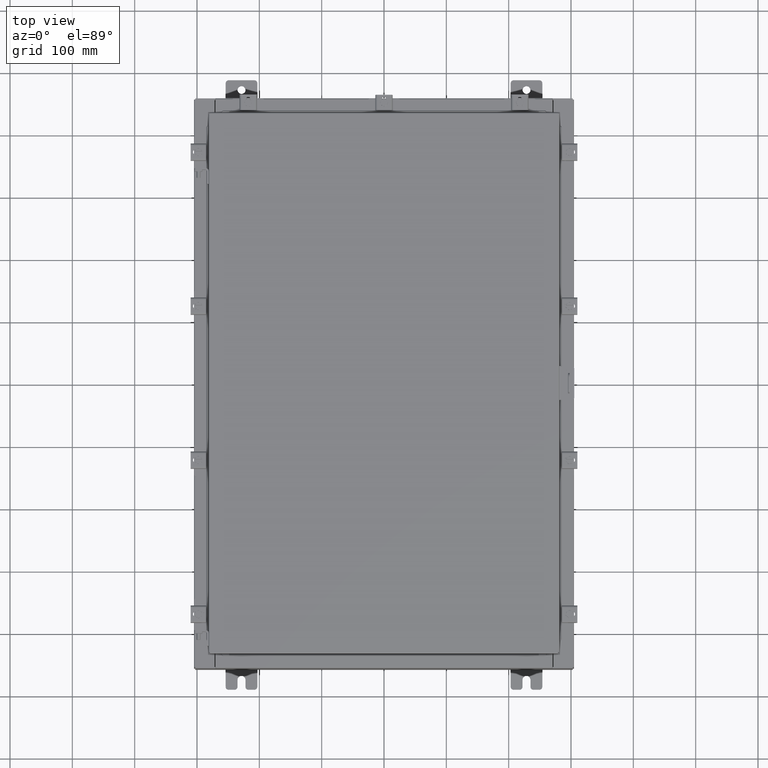
[diagram: clean part render]
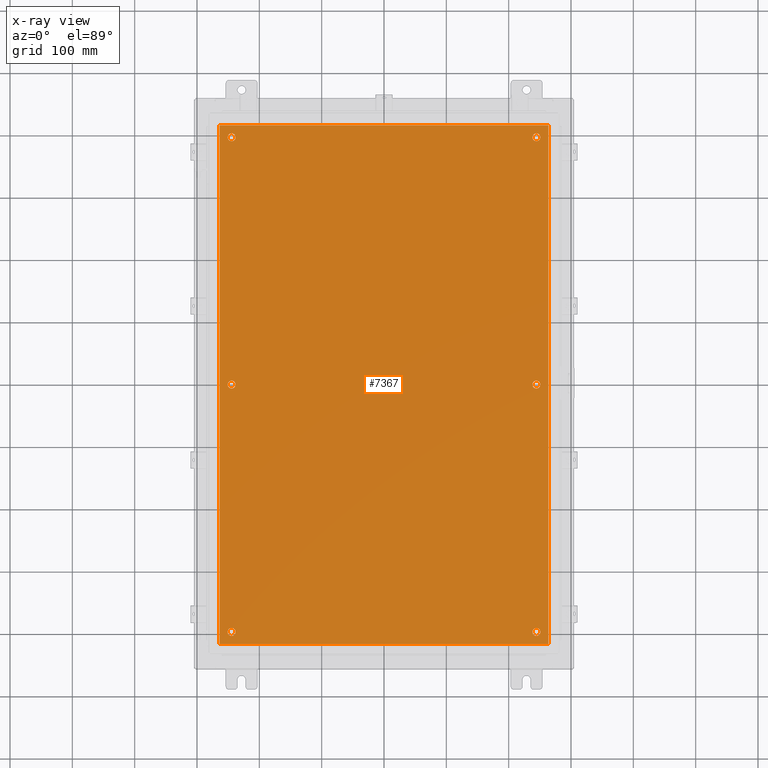
[diagram: x-ray — body ghosted, one internal face saturated and labeled with its STEP entity id]
A machine part, top view, then the same camera in x-ray: the body is ghosted and one INTERNAL B-rep face — a face not visible from any outside direction — is saturated and labeled: STEP entity #7367.
In plain terms, the highlighted planar face has unit normal (0, 0, -1).
Its self-contained STEP definition (entity closure, byte-faithful):
#87 = LINE ( 'NONE', #20182, #22850 ) ;
#233 = EDGE_CURVE ( 'NONE', #4093, #21876, #3346, .T. ) ;
#275 = DIRECTION ( 'NONE',  ( -0.0000000000000000000, -0.0000000000000000000, 1.000000000000000000 ) ) ;
#276 = FACE_BOUND ( 'NONE', #6304, .T. ) ;
#393 = CARTESIAN_POINT ( 'NONE',  ( 9.375000000000007100, 15.62500000000000200, -0.1039999999999999800 ) ) ;
#644 = CARTESIAN_POINT ( 'NONE',  ( 10.38300000000000100, 16.38300000000000300, -0.1040000000000009100 ) ) ;
#812 = FACE_BOUND ( 'NONE', #20964, .T. ) ;
#1021 = EDGE_LOOP ( 'NONE', ( #12643, #14205 ) ) ;
#1357 = EDGE_CURVE ( 'NONE', #20953, #22710, #8074, .T. ) ;
#1564 = CARTESIAN_POINT ( 'NONE',  ( -9.375000000000007100, 15.62500000000000200, -0.1039999999999999800 ) ) ;
#1627 = PLANE ( 'NONE',  #22782 ) ;
#1667 = ORIENTED_EDGE ( 'NONE', *, *, #22546, .T. ) ;
#2003 = CARTESIAN_POINT ( 'NONE',  ( -9.625000000000007100, 15.62500000000000200, -0.1039999999999999800 ) ) ;
#2043 = EDGE_CURVE ( 'NONE', #11783, #20273, #9920, .T. ) ;
#2209 = ORIENTED_EDGE ( 'NONE', *, *, #21943, .T. ) ;
#2284 = ORIENTED_EDGE ( 'NONE', *, *, #16944, .T. ) ;
#2448 = ORIENTED_EDGE ( 'NONE', *, *, #20323, .T. ) ;
#2537 = VERTEX_POINT ( 'NONE', #6077 ) ;
#3115 = CARTESIAN_POINT ( 'NONE',  ( 9.625000000000007100, 15.62500000000000200, -0.1039999999999999800 ) ) ;
#3303 = CARTESIAN_POINT ( 'NONE',  ( -9.625000000000007100, 15.62500000000000200, -0.1039999999999999800 ) ) ;
#3311 = CIRCLE ( 'NONE', #15543, 0.2499999999999998100 ) ;
#3319 = CARTESIAN_POINT ( 'NONE',  ( -10.38300000000000100, -16.38299999999999600, -0.1040000000000009100 ) ) ;
#3323 = CARTESIAN_POINT ( 'NONE',  ( 9.625000000000007100, -15.62500000000000200, -0.1039999999999999800 ) ) ;
#3346 = CIRCLE ( 'NONE', #18499, 0.2499999999999998100 ) ;
#3440 = DIRECTION ( 'NONE',  ( -1.000000000000000000, 0.0000000000000000000, -0.0000000000000000000 ) ) ;
#3814 = DIRECTION ( 'NONE',  ( -1.000000000000000000, 0.0000000000000000000, 0.0000000000000000000 ) ) ;
#3876 = ORIENTED_EDGE ( 'NONE', *, *, #13401, .F. ) ;
#4093 = VERTEX_POINT ( 'NONE', #8895 ) ;
#4152 = DIRECTION ( 'NONE',  ( -0.0000000000000000000, -0.0000000000000000000, 1.000000000000000000 ) ) ;
#4212 = ORIENTED_EDGE ( 'NONE', *, *, #21052, .F. ) ;
#4748 = CARTESIAN_POINT ( 'NONE',  ( 9.625000000000007100, 2.620299400612403500E-015, -0.1039999999999999800 ) ) ;
#4909 = ORIENTED_EDGE ( 'NONE', *, *, #11054, .F. ) ;
#4938 = DIRECTION ( 'NONE',  ( -1.000000000000000000, 0.0000000000000000000, 0.0000000000000000000 ) ) ;
#5059 = FACE_BOUND ( 'NONE', #15560, .T. ) ;
#5128 = DIRECTION ( 'NONE',  ( -1.000000000000000000, 0.0000000000000000000, 0.0000000000000000000 ) ) ;
#5148 = DIRECTION ( 'NONE',  ( -1.000000000000000000, 0.0000000000000000000, 0.0000000000000000000 ) ) ;
#5510 = ORIENTED_EDGE ( 'NONE', *, *, #20929, .T. ) ;
#5511 = DIRECTION ( 'NONE',  ( -0.0000000000000000000, -0.0000000000000000000, 1.000000000000000000 ) ) ;
#5569 = EDGE_LOOP ( 'NONE', ( #11917, #4909, #3876, #4212 ) ) ;
#5873 = DIRECTION ( 'NONE',  ( 1.000000000000000000, -0.0000000000000000000, -0.0000000000000000000 ) ) ;
#6077 = CARTESIAN_POINT ( 'NONE',  ( 9.375000000000007100, 2.650915570591087300E-015, -0.1039999999999999800 ) ) ;
#6178 = FACE_BOUND ( 'NONE', #14673, .T. ) ;
#6304 = EDGE_LOOP ( 'NONE', ( #2284, #5510 ) ) ;
#6528 = DIRECTION ( 'NONE',  ( -0.0000000000000000000, -0.0000000000000000000, 1.000000000000000000 ) ) ;
#6571 = DIRECTION ( 'NONE',  ( -1.000000000000000000, 0.0000000000000000000, 0.0000000000000000000 ) ) ;
#6975 = CARTESIAN_POINT ( 'NONE',  ( -9.625000000000007100, -15.62500000000000200, -0.1039999999999999800 ) ) ;
#7360 = ORIENTED_EDGE ( 'NONE', *, *, #14697, .T. ) ;
#7367 = ADVANCED_FACE ( 'NONE', ( #9801, #6178, #812, #14609, #5059, #276, #18817 ), #1627, .T. ) ;
#7517 = VERTEX_POINT ( 'NONE', #7525 ) ;
#7525 = CARTESIAN_POINT ( 'NONE',  ( -9.375000000000005300, 2.628543122537473900E-016, -0.1039999999999999800 ) ) ;
#7686 = ORIENTED_EDGE ( 'NONE', *, *, #2043, .T. ) ;
#8074 = CIRCLE ( 'NONE', #15501, 0.2500000000000008900 ) ;
#8207 = CIRCLE ( 'NONE', #14551, 0.2499999999999998100 ) ;
#8218 = VERTEX_POINT ( 'NONE', #644 ) ;
#8235 = CARTESIAN_POINT ( 'NONE',  ( 9.875000000000007100, -15.62500000000000200, -0.1039999999999999800 ) ) ;
#8316 = CARTESIAN_POINT ( 'NONE',  ( 9.625000000000007100, 15.62500000000000200, -0.1039999999999999800 ) ) ;
#8665 = CIRCLE ( 'NONE', #9198, 0.2500000000000008900 ) ;
#8691 = CARTESIAN_POINT ( 'NONE',  ( 0.0000000000000000000, 0.0000000000000000000, -0.1039999999999999800 ) ) ;
#8773 = DIRECTION ( 'NONE',  ( -1.000000000000000000, 0.0000000000000000000, 0.0000000000000000000 ) ) ;
#8885 = CIRCLE ( 'NONE', #21872, 0.2500000000000008900 ) ;
#8895 = CARTESIAN_POINT ( 'NONE',  ( 9.375000000000007100, -15.62500000000000200, -0.1039999999999999800 ) ) ;
#9140 = CIRCLE ( 'NONE', #9565, 0.2499999999999998100 ) ;
#9198 = AXIS2_PLACEMENT_3D ( 'NONE', #16265, #5511, #18061 ) ;
#9370 = CARTESIAN_POINT ( 'NONE',  ( -10.38300000000000100, 16.38300000000000300, -0.1039999999999987600 ) ) ;
#9409 = DIRECTION ( 'NONE',  ( -1.000000000000000000, 0.0000000000000000000, 0.0000000000000000000 ) ) ;
#9467 = EDGE_CURVE ( 'NONE', #21876, #4093, #9140, .T. ) ;
#9565 = AXIS2_PLACEMENT_3D ( 'NONE', #3323, #15902, #5148 ) ;
#9656 = CARTESIAN_POINT ( 'NONE',  ( -9.875000000000007100, 15.62500000000000200, -0.1039999999999999800 ) ) ;
#9752 = DIRECTION ( 'NONE',  ( 0.0000000000000000000, 1.000000000000000000, 0.0000000000000000000 ) ) ;
#9801 = FACE_BOUND ( 'NONE', #12219, .T. ) ;
#9920 = CIRCLE ( 'NONE', #18218, 0.2499999999999998100 ) ;
#10095 = LINE ( 'NONE', #20521, #19669 ) ;
#10122 = DIRECTION ( 'NONE',  ( -1.000000000000000000, 0.0000000000000000000, 0.0000000000000000000 ) ) ;
#10277 = VERTEX_POINT ( 'NONE', #9370 ) ;
#10446 = DIRECTION ( 'NONE',  ( -0.0000000000000000000, -0.0000000000000000000, 1.000000000000000000 ) ) ;
#11054 = EDGE_CURVE ( 'NONE', #10277, #11844, #87, .T. ) ;
#11116 = LINE ( 'NONE', #23048, #16473 ) ;
#11359 = CARTESIAN_POINT ( 'NONE',  ( 9.875000000000007100, 15.62500000000000200, -0.1039999999999999800 ) ) ;
#11569 = CIRCLE ( 'NONE', #17589, 0.2500000000000008900 ) ;
#11783 = VERTEX_POINT ( 'NONE', #11359 ) ;
#11844 = VERTEX_POINT ( 'NONE', #3319 ) ;
#11917 = ORIENTED_EDGE ( 'NONE', *, *, #17900, .F. ) ;
#12211 = AXIS2_PLACEMENT_3D ( 'NONE', #2003, #14575, #3814 ) ;
#12219 = EDGE_LOOP ( 'NONE', ( #17814, #1667 ) ) ;
#12643 = ORIENTED_EDGE ( 'NONE', *, *, #9467, .T. ) ;
#13401 = EDGE_CURVE ( 'NONE', #8218, #10277, #11116, .T. ) ;
#13449 = CARTESIAN_POINT ( 'NONE',  ( 10.38300000000000100, -16.38299999999999600, -0.1040000000000009100 ) ) ;
#13896 = VERTEX_POINT ( 'NONE', #13449 ) ;
#14201 = DIRECTION ( 'NONE',  ( 0.0000000000000000000, 0.0000000000000000000, -1.000000000000000000 ) ) ;
#14205 = ORIENTED_EDGE ( 'NONE', *, *, #233, .T. ) ;
#14304 = AXIS2_PLACEMENT_3D ( 'NONE', #14909, #4152, #16721 ) ;
#14551 = AXIS2_PLACEMENT_3D ( 'NONE', #8316, #20892, #10122 ) ;
#14575 = DIRECTION ( 'NONE',  ( -0.0000000000000000000, -0.0000000000000000000, 1.000000000000000000 ) ) ;
#14609 = FACE_BOUND ( 'NONE', #1021, .T. ) ;
#14656 = ORIENTED_EDGE ( 'NONE', *, *, #1357, .T. ) ;
#14673 = EDGE_LOOP ( 'NONE', ( #2448, #2209 ) ) ;
#14683 = VERTEX_POINT ( 'NONE', #1564 ) ;
#14697 = EDGE_CURVE ( 'NONE', #22710, #20953, #8885, .T. ) ;
#14909 = CARTESIAN_POINT ( 'NONE',  ( -9.625000000000005300, 2.628543122537473900E-016, -0.1039999999999999800 ) ) ;
#15073 = CIRCLE ( 'NONE', #12211, 0.2500000000000008900 ) ;
#15316 = CARTESIAN_POINT ( 'NONE',  ( -9.875000000000005300, 2.934704822324310800E-016, -0.1039999999999999800 ) ) ;
#15469 = LINE ( 'NONE', #16633, #20267 ) ;
#15501 = AXIS2_PLACEMENT_3D ( 'NONE', #17281, #6528, #19076 ) ;
#15543 = AXIS2_PLACEMENT_3D ( 'NONE', #21210, #10446, #23024 ) ;
#15560 = EDGE_LOOP ( 'NONE', ( #7686, #16424 ) ) ;
#15682 = DIRECTION ( 'NONE',  ( -0.0000000000000000000, -0.0000000000000000000, 1.000000000000000000 ) ) ;
#15746 = CIRCLE ( 'NONE', #23002, 0.2499999999999998100 ) ;
#15755 = EDGE_CURVE ( 'NONE', #20273, #11783, #8207, .T. ) ;
#15882 = DIRECTION ( 'NONE',  ( -0.0000000000000000000, -0.0000000000000000000, 1.000000000000000000 ) ) ;
#15902 = DIRECTION ( 'NONE',  ( -0.0000000000000000000, -0.0000000000000000000, 1.000000000000000000 ) ) ;
#16265 = CARTESIAN_POINT ( 'NONE',  ( -9.625000000000005300, 2.628543122537473900E-016, -0.1039999999999999800 ) ) ;
#16424 = ORIENTED_EDGE ( 'NONE', *, *, #15755, .T. ) ;
#16473 = VECTOR ( 'NONE', #19430, 39.37007874015748100 ) ;
#16633 = CARTESIAN_POINT ( 'NONE',  ( -10.50000000000000200, -16.38299999999999600, -0.1040000000000009100 ) ) ;
#16721 = DIRECTION ( 'NONE',  ( -1.000000000000000000, 0.0000000000000000000, 0.0000000000000000000 ) ) ;
#16944 = EDGE_CURVE ( 'NONE', #14683, #22958, #11569, .T. ) ;
#17281 = CARTESIAN_POINT ( 'NONE',  ( -9.625000000000007100, -15.62500000000000200, -0.1039999999999999800 ) ) ;
#17312 = DIRECTION ( 'NONE',  ( -0.0000000000000000000, -0.0000000000000000000, 1.000000000000000000 ) ) ;
#17589 = AXIS2_PLACEMENT_3D ( 'NONE', #3303, #15882, #5128 ) ;
#17814 = ORIENTED_EDGE ( 'NONE', *, *, #18159, .T. ) ;
#17900 = EDGE_CURVE ( 'NONE', #11844, #13896, #15469, .T. ) ;
#18061 = DIRECTION ( 'NONE',  ( -1.000000000000000000, 0.0000000000000000000, 0.0000000000000000000 ) ) ;
#18159 = EDGE_CURVE ( 'NONE', #21807, #2537, #15746, .T. ) ;
#18218 = AXIS2_PLACEMENT_3D ( 'NONE', #3115, #15682, #4938 ) ;
#18499 = AXIS2_PLACEMENT_3D ( 'NONE', #20629, #275, #9409 ) ;
#18817 = FACE_OUTER_BOUND ( 'NONE', #5569, .T. ) ;
#18853 = CARTESIAN_POINT ( 'NONE',  ( 9.875000000000007100, 2.620299400612403500E-015, -0.1039999999999999800 ) ) ;
#19076 = DIRECTION ( 'NONE',  ( -1.000000000000000000, 0.0000000000000000000, 0.0000000000000000000 ) ) ;
#19430 = DIRECTION ( 'NONE',  ( -1.000000000000000000, -0.0000000000000000000, -0.0000000000000000000 ) ) ;
#19540 = DIRECTION ( 'NONE',  ( -0.0000000000000000000, -0.0000000000000000000, 1.000000000000000000 ) ) ;
#19669 = VECTOR ( 'NONE', #9752, 39.37007874015748100 ) ;
#19724 = CARTESIAN_POINT ( 'NONE',  ( -9.875000000000007100, -15.62500000000000200, -0.1039999999999999800 ) ) ;
#20182 = CARTESIAN_POINT ( 'NONE',  ( -10.38300000000000100, 16.38300000000000300, -0.1039999999999987600 ) ) ;
#20267 = VECTOR ( 'NONE', #5873, 39.37007874015748100 ) ;
#20273 = VERTEX_POINT ( 'NONE', #393 ) ;
#20323 = EDGE_CURVE ( 'NONE', #7517, #21816, #20985, .T. ) ;
#20521 = CARTESIAN_POINT ( 'NONE',  ( 10.38300000000000100, -16.38299999999999600, -0.1040000000000009100 ) ) ;
#20629 = CARTESIAN_POINT ( 'NONE',  ( 9.625000000000007100, -15.62500000000000200, -0.1039999999999999800 ) ) ;
#20892 = DIRECTION ( 'NONE',  ( -0.0000000000000000000, -0.0000000000000000000, 1.000000000000000000 ) ) ;
#20929 = EDGE_CURVE ( 'NONE', #22958, #14683, #15073, .T. ) ;
#20953 = VERTEX_POINT ( 'NONE', #21804 ) ;
#20964 = EDGE_LOOP ( 'NONE', ( #14656, #7360 ) ) ;
#20985 = CIRCLE ( 'NONE', #14304, 0.2500000000000008900 ) ;
#21052 = EDGE_CURVE ( 'NONE', #13896, #8218, #10095, .T. ) ;
#21210 = CARTESIAN_POINT ( 'NONE',  ( 9.625000000000007100, 2.620299400612403500E-015, -0.1039999999999999800 ) ) ;
#21804 = CARTESIAN_POINT ( 'NONE',  ( -9.375000000000007100, -15.62500000000000200, -0.1039999999999999800 ) ) ;
#21807 = VERTEX_POINT ( 'NONE', #18853 ) ;
#21816 = VERTEX_POINT ( 'NONE', #15316 ) ;
#21872 = AXIS2_PLACEMENT_3D ( 'NONE', #6975, #19540, #8773 ) ;
#21876 = VERTEX_POINT ( 'NONE', #8235 ) ;
#21943 = EDGE_CURVE ( 'NONE', #21816, #7517, #8665, .T. ) ;
#21995 = DIRECTION ( 'NONE',  ( 0.0000000000000000000, -1.000000000000000000, 0.0000000000000000000 ) ) ;
#22546 = EDGE_CURVE ( 'NONE', #2537, #21807, #3311, .T. ) ;
#22710 = VERTEX_POINT ( 'NONE', #19724 ) ;
#22782 = AXIS2_PLACEMENT_3D ( 'NONE', #8691, #14201, #3440 ) ;
#22850 = VECTOR ( 'NONE', #21995, 39.37007874015748100 ) ;
#22958 = VERTEX_POINT ( 'NONE', #9656 ) ;
#23002 = AXIS2_PLACEMENT_3D ( 'NONE', #4748, #17312, #6571 ) ;
#23024 = DIRECTION ( 'NONE',  ( -1.000000000000000000, 0.0000000000000000000, 0.0000000000000000000 ) ) ;
#23048 = CARTESIAN_POINT ( 'NONE',  ( 10.50000000000000400, 16.38299999999999900, -0.1040000000000009100 ) ) ;